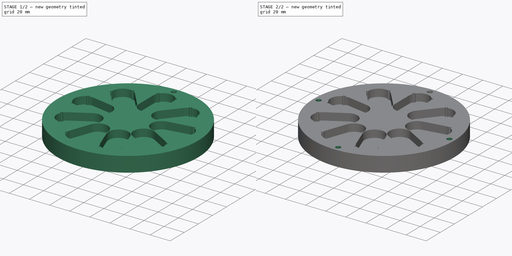
[diagram: build sequence overview — one tinted view per stage of 2, left to right]
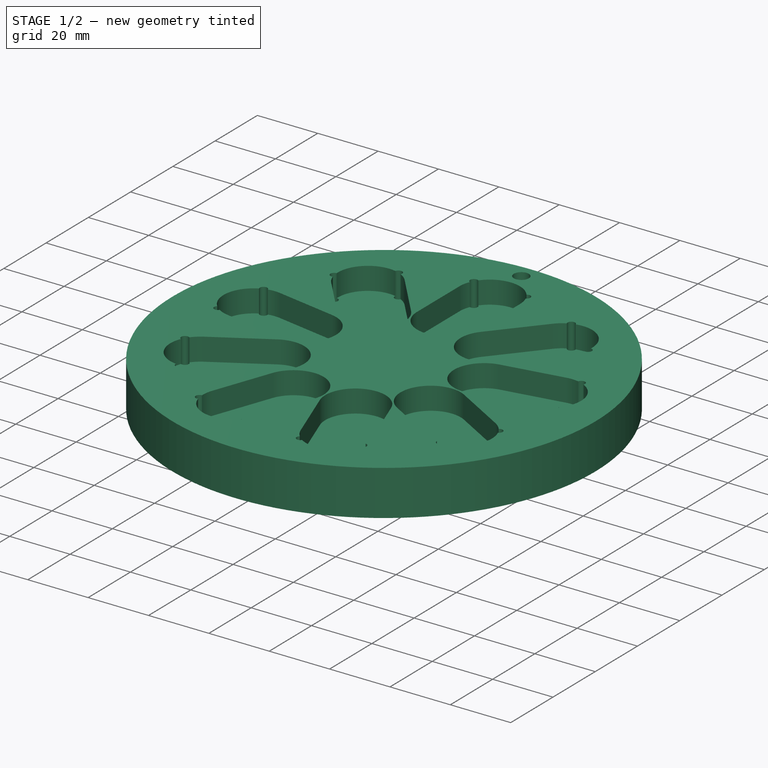
[diagram: stage 1 of 2 — iso view after this stage's code; geometry added in this stage tinted green]
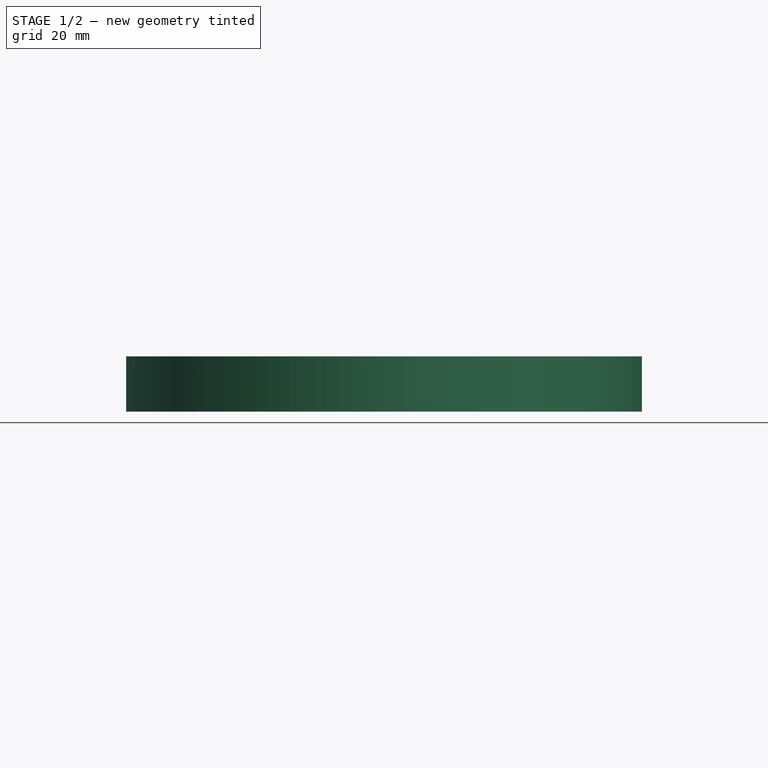
[diagram: stage 1 of 2 — front view after this stage's code; geometry added in this stage tinted green]
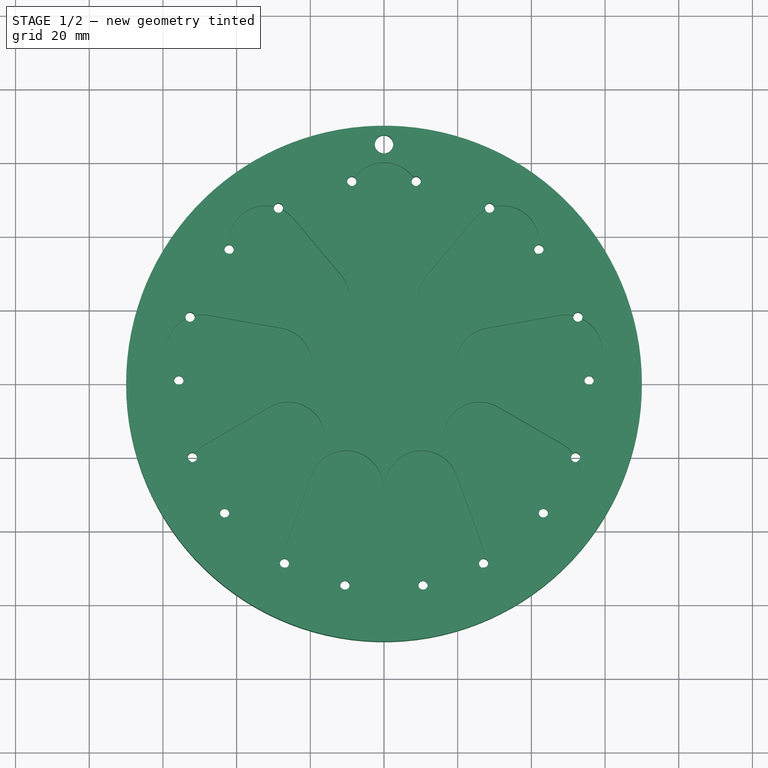
[diagram: stage 1 of 2 — top view after this stage's code; geometry added in this stage tinted green]
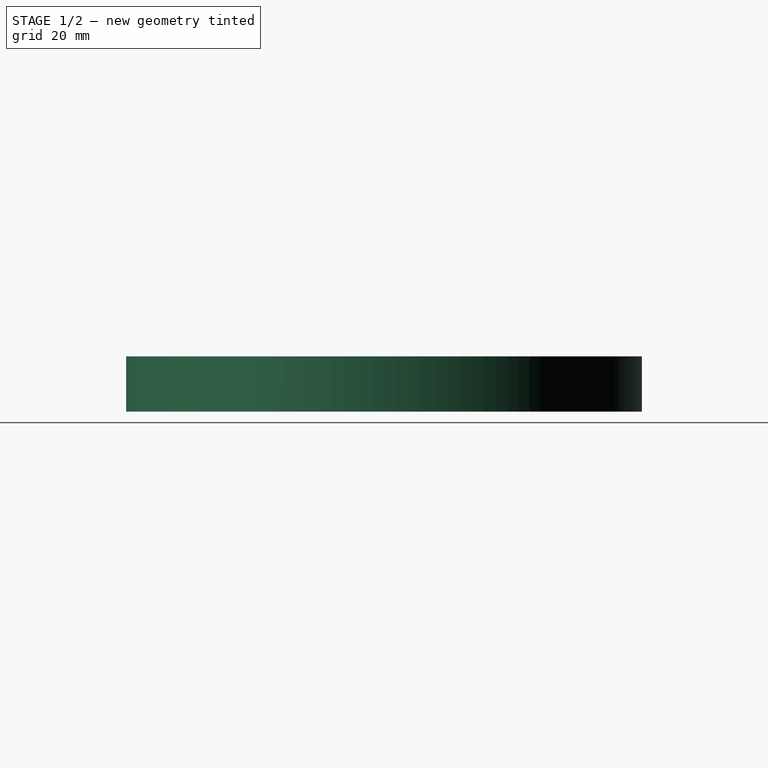
[diagram: stage 1 of 2 — right view after this stage's code; geometry added in this stage tinted green]
FCSTD DOCUMENT  (FreeCAD 0.19R)
Label: stator
License: All rights reserved
LicenseURL: http://en.wikipedia.org/wiki/All_rights_reserved
objects: Sketcher::SketchObject×4, PartDesign::Pocket×3, PartDesign::PolarPattern×3, Spreadsheet::Sheet×1, PartDesign::Body×1, PartDesign::Pad×1
note: 16 computed .brp shape members not serialized (recipe doc carries the construction recipe); baked Part::Feature solids carry a one-line shape summary decoded from their .brp

FEATURE [Spreadsheet::Sheet] Spreadsheet001  label="dimensions"
  cells = A1=r; B1=L bobine; C1=l bobine; D1=r bobine; E1=D bobine; F1=d fil; G1=r trou fil; H1=D trou fil; I1=d trous; J1=d vis fixation; A2==70mm; B2==40mm - C2; C2==20mm; D2==C2 / 2; E2==A2 - B2 - C2; F2==1.5mm; G2==F2 / 2 + 0.5mm; H2==E2 + B2 + D2 / 2; I2==17.5mm; J2==5mm; B3==B2 + 2 * D2
FEATURE [PartDesign::Body] Body
  Group = -> [Sketch,Pad,Sketch001,Pocket,PolarPattern,Sketch002,Pocket001,PolarPattern001,Sketch003,Pocket002,PolarPattern002]
  Origin = -> Origin
  Tip = -> PolarPattern002
FEATURE [Sketcher::SketchObject] Sketch
  FullyConstrained = true
  MapMode = 2
  Support = -> [PolarPattern001]
  expr: Constraints[1] = <<dimensions>>.A2
  sketch-geometry (1):
    g0: Circle CenterX=0 CenterY=0 CenterZ=0 NormalX=0 NormalY=0 NormalZ=1 AngleXU=0 Radius=70
  constraints (2):
    c: Coincident(g0,g-1)
    c: Radius(g0) = 70
FEATURE [PartDesign::Pad] Pad
  Direction = (1,1,1)
  Length = 15
  Length2 = 100
  Profile = -> Sketch
  Type = 0
FEATURE [Sketcher::SketchObject] Sketch001
  FullyConstrained = true
  MapMode = 5
  Placement = pos=(0,0,15) rot=(0,0,1;0rad)
  Support = -> [Pad]
  expr: Constraints[6] = <<dimensions>>.D2
  expr: Constraints[7] = <<dimensions>>.B2
  expr: Constraints[8] = <<dimensions>>.E2
  sketch-geometry (4):
    g0: ArcOfCircle CenterX=1e-16 CenterY=50 CenterZ=0 NormalX=0 NormalY=0 NormalZ=1 AngleXU=0 Radius=10 StartAngle=0 EndAngle=3.14159
    g1: ArcOfCircle CenterX=0 CenterY=30 CenterZ=0 NormalX=0 NormalY=0 NormalZ=1 AngleXU=0 Radius=10 StartAngle=3.14159 EndAngle=6.28319
    g2: LineSegment StartX=-10 StartY=50 StartZ=0 EndX=-10 EndY=30 EndZ=0
    g3: LineSegment StartX=10 StartY=50 StartZ=0 EndX=10 EndY=30 EndZ=0
  constraints (10):
    c: Tangent(g0,g3) = 1.5708
    c: Tangent(g0,g2) = -1.5708
    c: Tangent(g2,g1) = -1.5708
    c: Tangent(g3,g1) = 1.5708
    c: Vertical(g2)
    c: Equal(g0,g1)
    c: Radius(g0) = 10
    c: Distance(g0,g1) = 20
    c: Distance(g-1,g1) = 30
    c: PointOnObject(g1,g-2)
FEATURE [PartDesign::Pocket] Pocket
  BaseFeature = -> Pad
  Length = 7.5
  Length2 = 100
  Profile = -> Sketch001
  Type = 0
FEATURE [PartDesign::PolarPattern] PolarPattern
  Angle = 360
  Axis = -> Sketch001 [N_Axis]
  BaseFeature = -> Pocket
  Occurrences = 9
  Originals = -> [Pocket]
FEATURE [Sketcher::SketchObject] Sketch002
  FullyConstrained = true
  MapMode = 5
  Placement = pos=(0,0,15) rot=(0,0,1;0rad)
  Support = -> [Pad]
  expr: Constraints[3] = <<dimensions>>.G2
  expr: Constraints[4] = <<dimensions>>.G2
  expr: Constraints[5] = <<dimensions>>.I2
  expr: Constraints[6] = <<dimensions>>.H2
  expr: Constraints[7] = <<dimensions>>.I2 / 2
  sketch-geometry (3):
    g0: LineSegment StartX=-8.75 StartY=55 StartZ=0 EndX=8.75 EndY=55 EndZ=0
    g1: Circle CenterX=-8.75 CenterY=55 CenterZ=0 NormalX=0 NormalY=0 NormalZ=1 AngleXU=0 Radius=1.25
    g2: Circle CenterX=8.75 CenterY=55 CenterZ=0 NormalX=0 NormalY=0 NormalZ=1 AngleXU=0 Radius=1.25
  constraints (8):
    c: Horizontal(g0)
    c: Coincident(g1,g0)
    c: Coincident(g2,g0)
    c: Radius(g2) = 1.25
    c: Radius(g1) = 1.25
    c: Distance(g0) = 17.5
    c: Distance(g-1,g0) = 55
    c: DistanceX(g-2,g2) = 8.75
FEATURE [PartDesign::Pocket] Pocket001
  BaseFeature = -> PolarPattern
  Length = 15
  Length2 = 100
  Profile = -> Sketch002
  Type = 0
FEATURE [PartDesign::PolarPattern] PolarPattern001
  Angle = 360
  Axis = -> Sketch002 [N_Axis]
  BaseFeature = -> Pocket001
  Occurrences = 9
  Originals = -> [Pocket001]
FEATURE [Sketcher::SketchObject] Sketch003
  FullyConstrained = true
  MapMode = 5
  Placement = pos=(0,0,15) rot=(0,0,1;0rad)
  Support = -> [PolarPattern001]
  expr: Constraints[3] = <<dimensions>>.J2 / 2
  expr: Constraints[1] = <<dimensions>>.A2 - <<dimensions>>.J2
  sketch-geometry (2):
    g0: GeomPoint X=0 Y=65 Z=0
    g1: Circle CenterX=0 CenterY=65 CenterZ=0 NormalX=0 NormalY=0 NormalZ=1 AngleXU=0 Radius=2.5
  constraints (4):
    c: PointOnObject(g0,g-2)
    c: Distance(g0,g-1) = 65
    c: Coincident(g1,g0)
    c: Radius(g1) = 2.5
FEATURE [PartDesign::Pocket] Pocket002
  BaseFeature = -> PolarPattern001
  Length = 5
  Length2 = 100
  Profile = -> Sketch003
  Type = 1
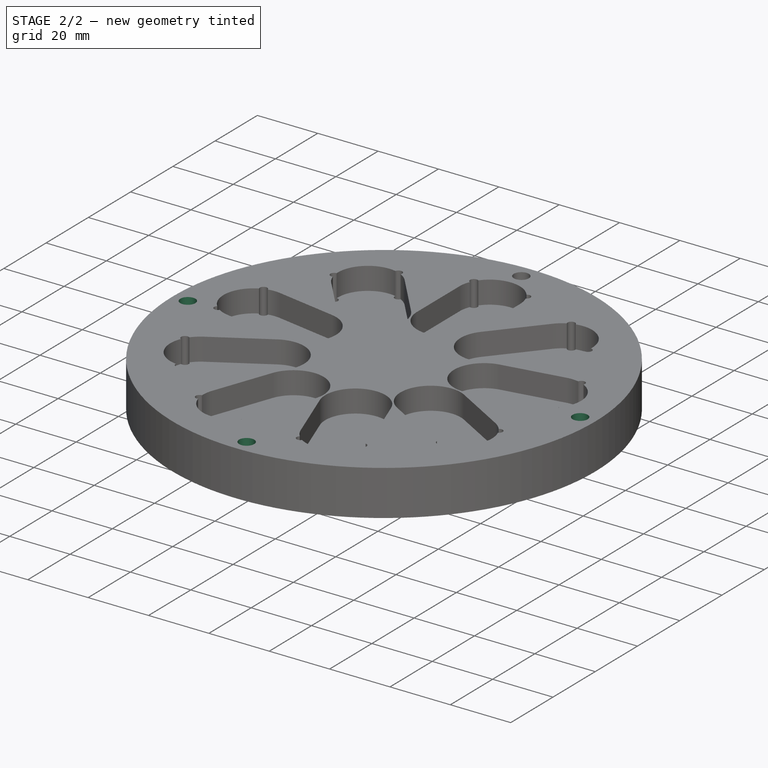
[diagram: stage 2 of 2 — iso view after this stage's code; geometry added in this stage tinted green]
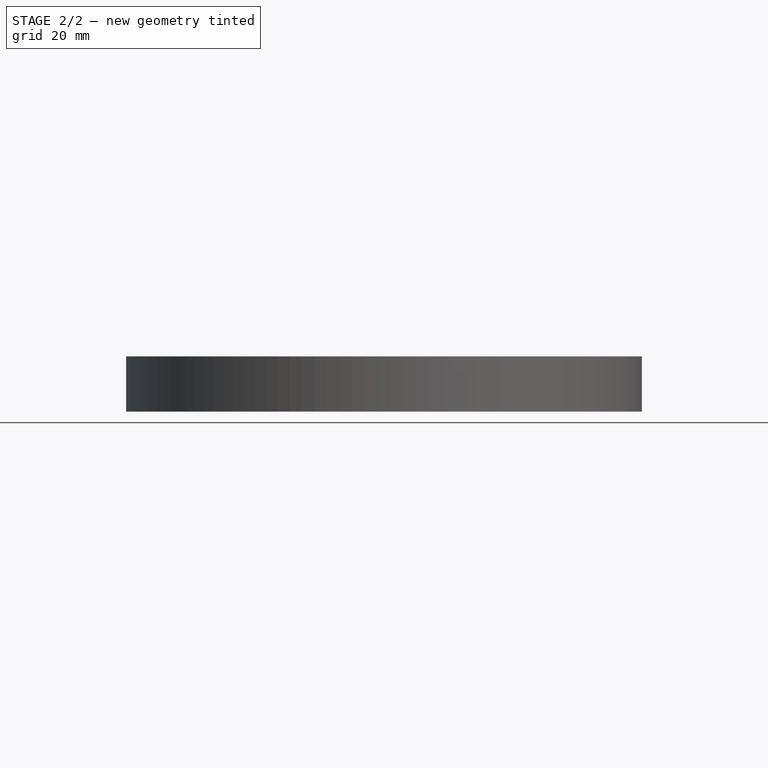
[diagram: stage 2 of 2 — front view after this stage's code; geometry added in this stage tinted green]
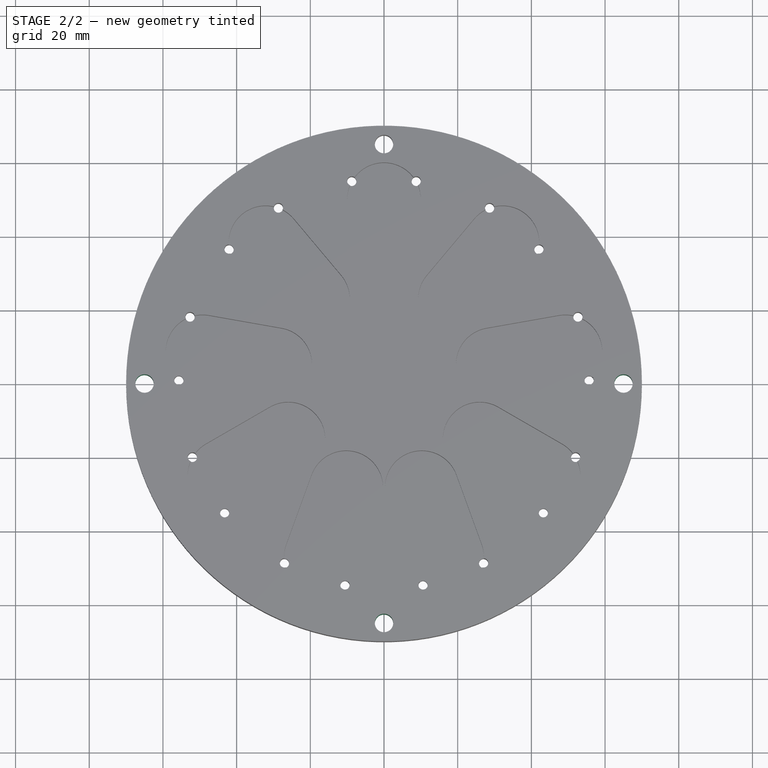
[diagram: stage 2 of 2 — top view after this stage's code; geometry added in this stage tinted green]
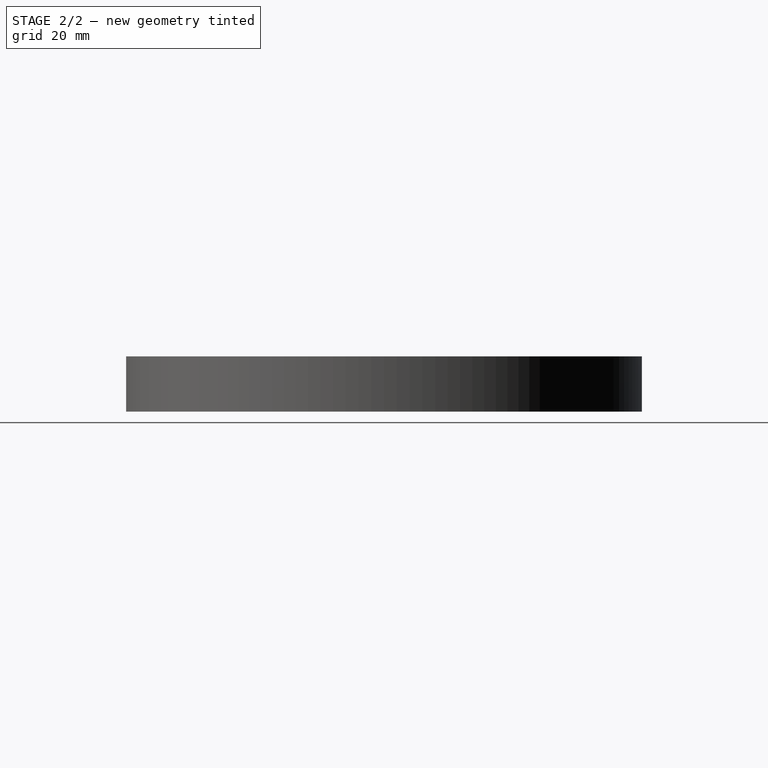
[diagram: stage 2 of 2 — right view after this stage's code; geometry added in this stage tinted green]
FEATURE [PartDesign::PolarPattern] PolarPattern002
  Angle = 360
  Axis = -> Sketch003 [N_Axis]
  BaseFeature = -> Pocket002
  Occurrences = 4
  Originals = -> [Pocket002]
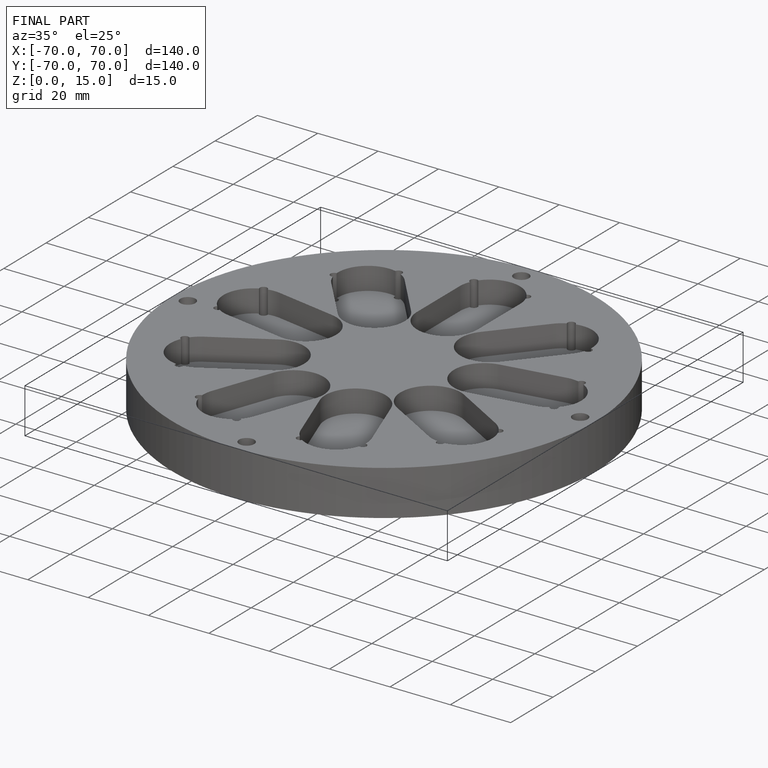
[diagram: finished part — iso view with bounding-box wireframe]
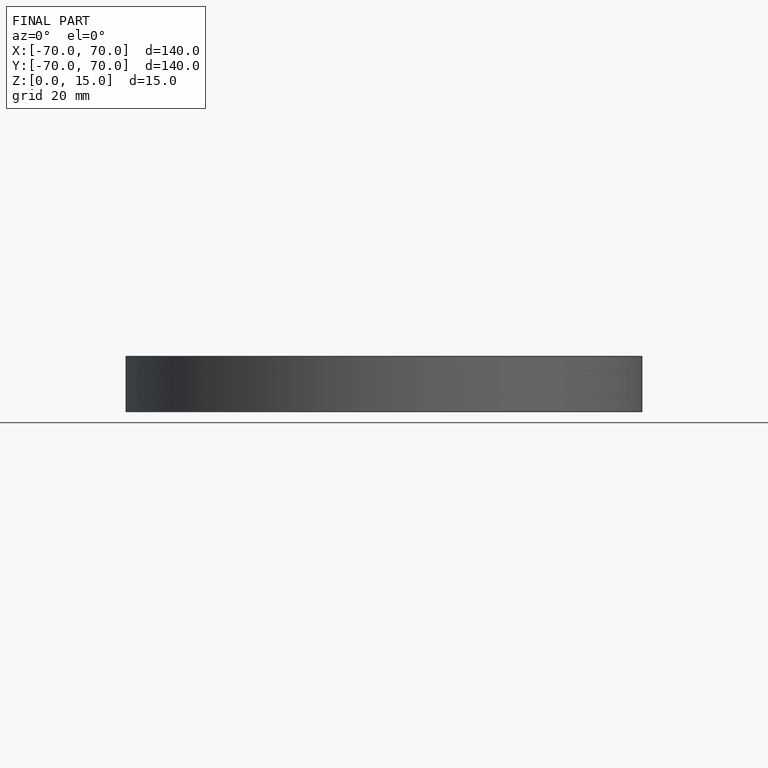
[diagram: finished part — front view with bounding-box wireframe]
